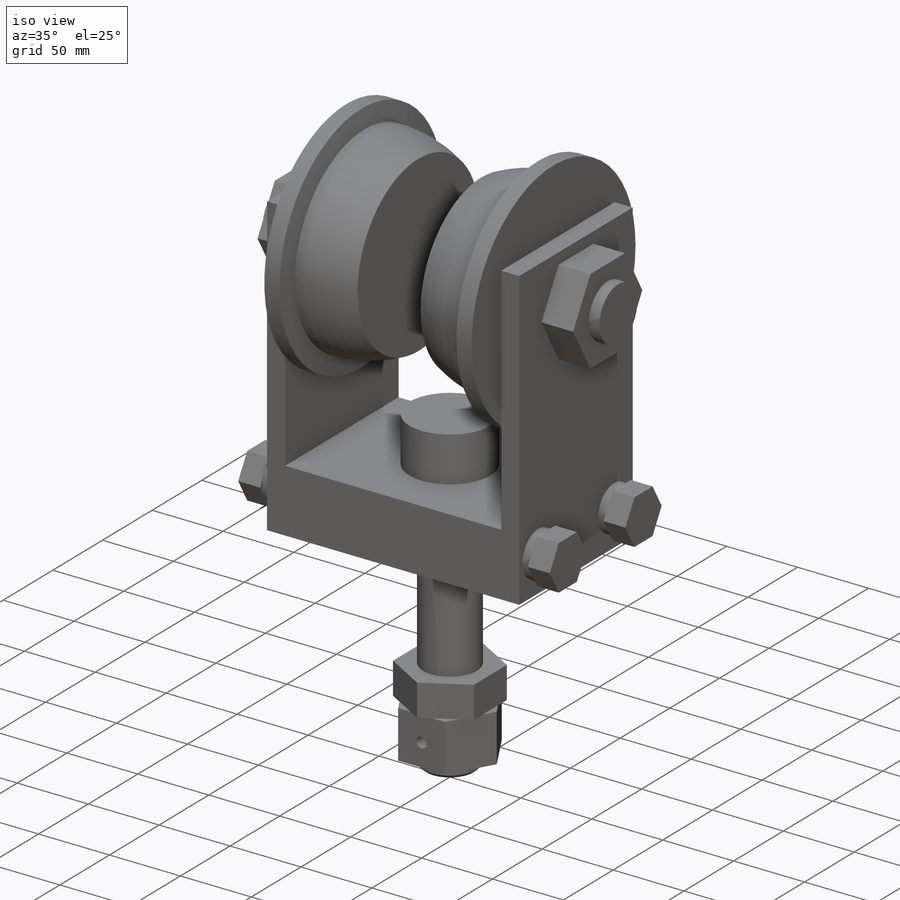
[diagram: iso view]
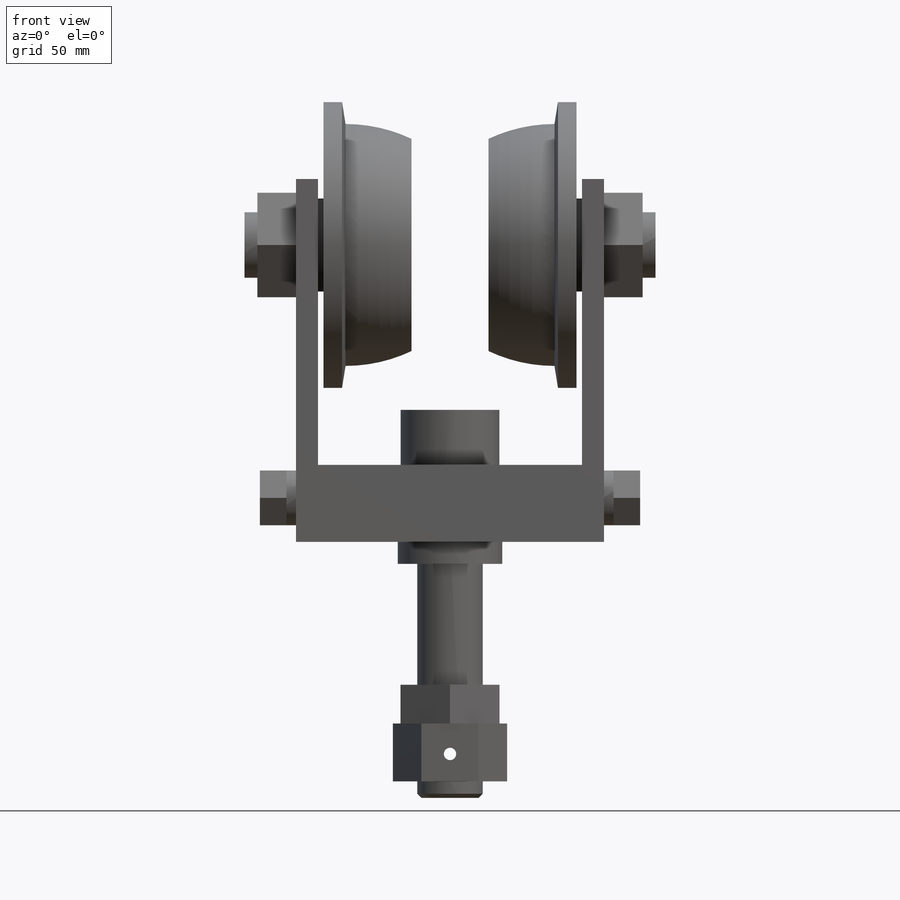
[diagram: front view]
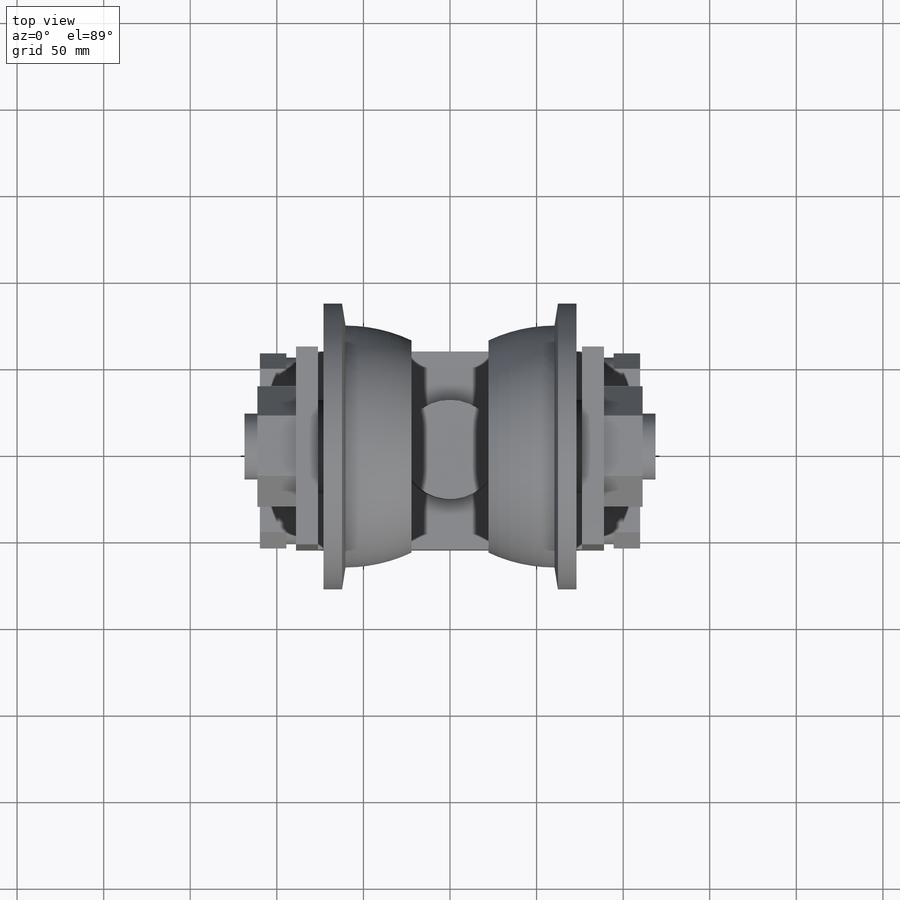
[diagram: top view]
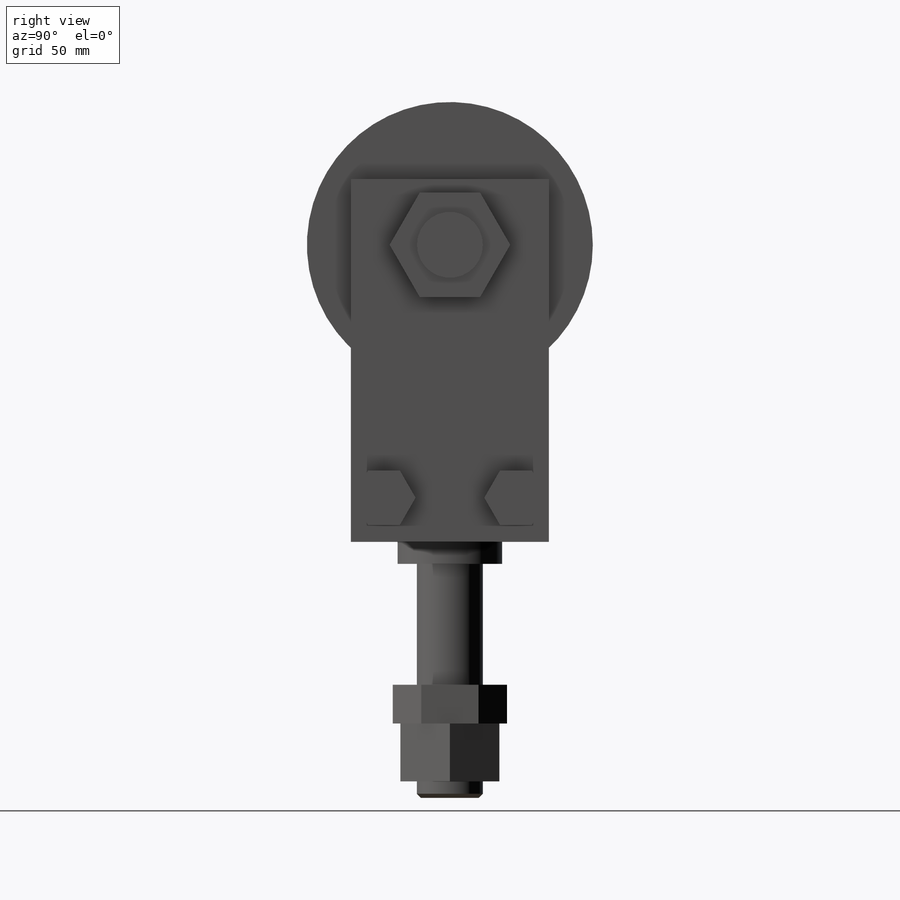
[diagram: right view]
SOLIDWORKS PART (.sldprt)
format: sldprt  version: not decoded by parser v0  size: 811,008 bytes
history: native  units: mm
features: sketch x14, extrude x12, plane x10, mirror x3, material x1, chamfer x1, revolve x1, cut_extrude x1 (+11 scaffold rows collapsed)
feature tree (54):
  scaffold x11  (default folders/planes/origin — collapsed)
  material  "Material <not specified>"
  plane  "Z PLANE"  Offset=0mm
  plane  "YOKE BOTTOM"  Offset=0mm
  plane  "X PLANE"  Offset=0mm
  sketch  "YOKE CROSS SECTION"  dims[D1=44.45mm D2=114.3mm]
  plane  "1/2 YOKE LENGTH (A)"  Offset=76.2mm
  extrude  "YOKE"  [1 undecoded]
  sketch  "SIDEPLATE PROFILE"  dims[D1=209.55mm]
  plane  "WHEEL HEIGHT"  Offset=171.45mm
  plane  "SCREW LOCATION X"  Offset=38.1mm
  plane  "SCREW LOCATION Y"  Offset=25.4mm
  extrude  "SIDEPLATE"  Depth=12.7mm
  sketch  "WHEEL PIN NUT PROFILE"  dims[D1=60.325mm]
  extrude  "WHEEL PIN NUT"  Depth=22.352mm
  sketch  "WHEEL PIN PROJECTION PROFILE"  dims[D1=38.1mm]
  extrude  "WHEEL PIN PROJECTION"  Depth=7.4168mm
  sketch  "LOCKNUTS PROFILE"  dims[D1=31.623mm]
  extrude  "LOCKNUTS"  Depth=5.5626mm
  sketch  "SCREWS PROFILE"  dims[D1=31.623mm]
  extrude  "SCREWS"  Depth=15.3416mm
  sketch  "PROFILE"  dims[D1=57.15mm]
  extrude  "KING BOLT HEAD"  Depth=31.75mm
  mirror  "Mirror1"
  mirror  "Mirror5"
  plane  "TOP OF NUT"  Offset=82.55mm
  sketch  "DIA."  dims[D1=38.1mm]
  extrude  "KING BOLT"  [1 undecoded]
  sketch  "KING BOLT JAN NUT PROFILE"  dims[D1=57.15mm]
  extrude  "KING BOLT JAM NUT"  Depth=22.352mm
  sketch  "KING BOLT NUT PROFILE"  dims[c1.D1=57.15mm c1.D2=44.45mm c2.D1=0.0mm]
  extrude  "KING BOLT NUT"  Depth=33.4518mm
  sketch  "Sketch5"
  extrude  "EXTENDED KING BOLT"  Depth=9.525mm
  chamfer  "Chamfer1"  Distance=2.38125mm Angle=45deg
  plane  "MOUNTING REF PLANE"  Offset=34.925mm
  sketch  "Sketch6"  dims[D9=88.9mm D1=3.175mm D2=~13.863518mm D3=15.875mm D4=53.975mm D5=26.9875mm D6=82.55mm D7=69.85mm D8=~61.271853mm]
  revolve  "WHEEL"  Angle=360deg
  mirror  "Mirror6"
  sketch  "Sketch7"  dims[D1=~7.14375mm D2=15.875mm]
  cut_extrude  "COTTER PIN HOLE"  [1 undecoded]
  sketch  "Sketch8"  dims[D1=60.325mm D2=50.8mm]
  extrude  "SPACER"  Depth=12.7mm
  plane  "TREAD OF TRACK"  Offset=101.6mm
decode coverage: 25 of 32 modeling features carry decoded parameters
note: ~ marks probable driven/reference dimensions
note: 3 parameter values undecoded
summary: no parameter record found for 3 features
note: suppression state not decoded; provenance and decode notes live in map.json
